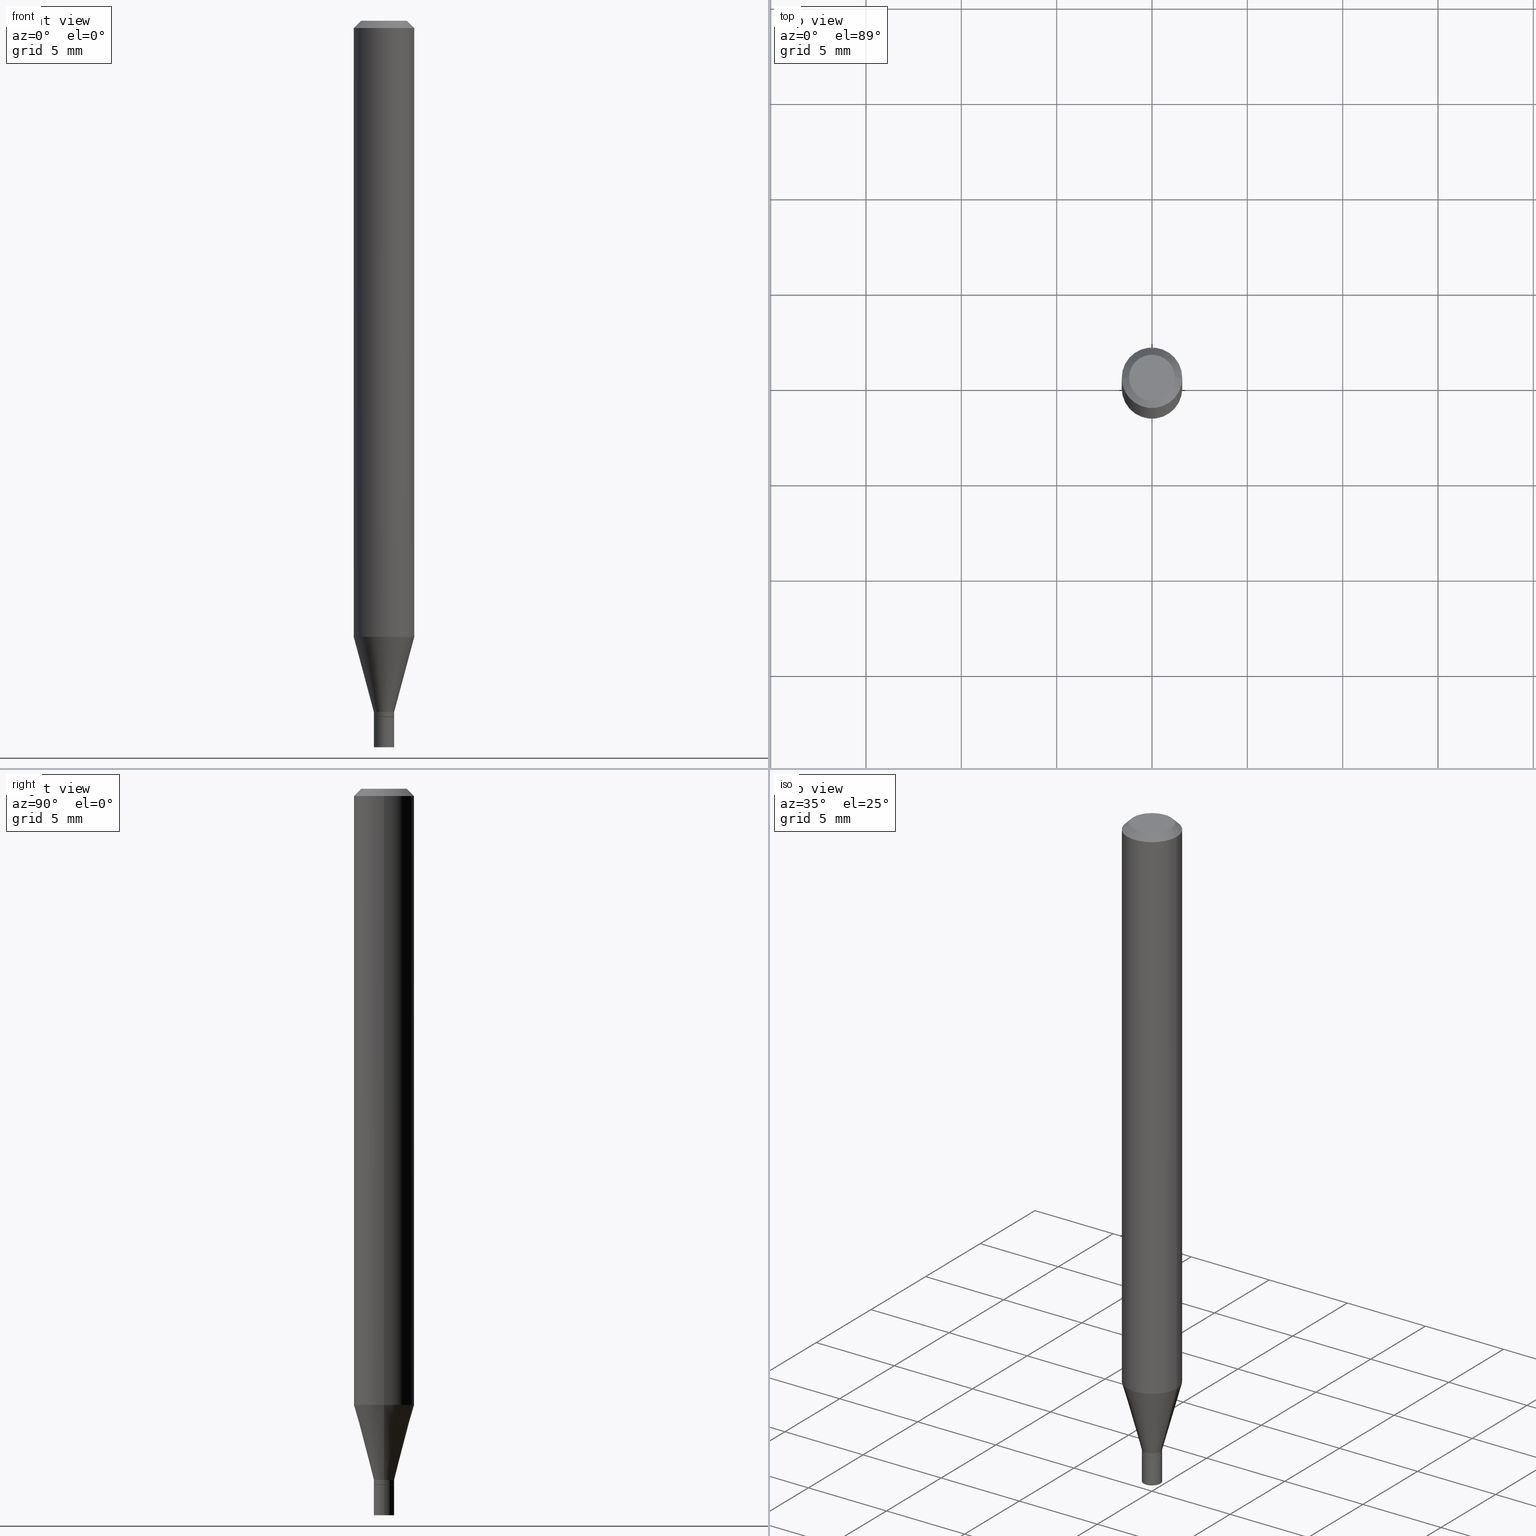
[diagram: canonical four-view strip — front | top / right | iso, engineering-drawing reading convention]
A machine part, canonical four-view strip (front | top / right | iso — engineering-drawing reading convention). The complete STEP part file that produces these views, byte-faithful:
ISO-10303-21;
HEADER;
FILE_DESCRIPTION (( 'STEP AP203' ),
    '1' );
FILE_NAME ('02369.STEP',
    '2024-03-18T20:16:10',
    ( '' ),
    ( '' ),
    'SwSTEP 2.0',
    'SolidWorks 2023',
    '' );
FILE_SCHEMA (( 'CONFIG_CONTROL_DESIGN' ));
ENDSEC;

DATA;
#1 = EDGE_CURVE ( 'NONE', #48, #379, #386, .T. ) ;
#2 = CARTESIAN_POINT ( 'NONE',  ( 3.110929512356370285E-29, -4.441582861894159323E-15, -1.272119891485891996 ) ) ;
#3 = CONICAL_SURFACE ( 'NONE', #146, 0.02050000000000000086, 0.7853981633974739252 ) ;
#4 = VECTOR ( 'NONE', #410, 39.37007874015748143 ) ;
#5 = DIRECTION ( 'NONE',  ( -1.000000000000000000, 6.982962677686266711E-15, 0.000000000000000000 ) ) ;
#6 = DIRECTION ( 'NONE',  ( 1.000000000000000000, -6.982962677686262766E-15, 0.000000000000000000 ) ) ;
#7 = DIRECTION ( 'NONE',  ( -2.445468806185136597E-29, 3.491481338843145583E-15, 1.000000000000000000 ) ) ;
#8 = EDGE_CURVE ( 'NONE', #56, #342, #374, .T. ) ;
#9 = APPROVAL_STATUS ( 'not_yet_approved' ) ;
#10 = DIRECTION ( 'NONE',  ( -2.445468806185136597E-29, 3.491481338843145583E-15, 1.000000000000000000 ) ) ;
#11 = ORIENTED_EDGE ( 'NONE', *, *, #62, .T. ) ;
#12 = FACE_OUTER_BOUND ( 'NONE', #460, .T. ) ;
#13 = CC_DESIGN_APPROVAL ( #274, ( #213 ) ) ;
#14 = ORIENTED_EDGE ( 'NONE', *, *, #8, .F. ) ;
#15 = CYLINDRICAL_SURFACE ( 'NONE', #162, 0.06250000000000000000 ) ;
#16 = ORIENTED_EDGE ( 'NONE', *, *, #402, .T. ) ;
#17 = DIRECTION ( 'NONE',  ( -2.445468806185136597E-29, 3.491481338843145583E-15, 1.000000000000000000 ) ) ;
#18 = ORIENTED_EDGE ( 'NONE', *, *, #132, .F. ) ;
#19 = VECTOR ( 'NONE', #326, 39.37007874015748854 ) ;
#20 = AXIS2_PLACEMENT_3D ( 'NONE', #373, #84, #220 ) ;
#21 = DIRECTION ( 'NONE',  ( 1.000000000000000000, -6.982962677686265922E-15, 0.000000000000000000 ) ) ;
#22 = EDGE_CURVE ( 'NONE', #296, #227, #312, .T. ) ;
#23 = EDGE_LOOP ( 'NONE', ( #167, #27 ) ) ;
#24 = EDGE_CURVE ( 'NONE', #446, #90, #184, .T. ) ;
#25 = DIRECTION ( 'NONE',  ( -2.445468806185136597E-29, 3.491481338843145583E-15, 1.000000000000000000 ) ) ;
#26 = DATE_AND_TIME ( #388, #231 ) ;
#27 = ORIENTED_EDGE ( 'NONE', *, *, #328, .T. ) ;
#28 = AXIS2_PLACEMENT_3D ( 'NONE', #339, #450, #445 ) ;
#29 = APPROVAL_DATE_TIME ( #26, #380 ) ;
#30 = ORIENTED_EDGE ( 'NONE', *, *, #24, .F. ) ;
#31 = CARTESIAN_POINT ( 'NONE',  ( 3.514138674488041056E-29, -5.017258683917600838E-15, -1.437000000000000055 ) ) ;
#32 = DATE_TIME_ROLE ( 'creation_date' ) ;
#33 = CARTESIAN_POINT ( 'NONE',  ( 0.02050000000000000086, -5.160409418810168864E-15, -1.437000000000000055 ) ) ;
#34 = AXIS2_PLACEMENT_3D ( 'NONE', #432, #7, #141 ) ;
#35 = LOCAL_TIME ( 16, 16, 10.00000000000000000, #127 ) ;
#36 = DIRECTION ( 'NONE',  ( 1.000000000000000000, -6.982962677686266711E-15, 4.876176775795936353E-29 ) ) ;
#37 = LINE ( 'NONE', #366, #397 ) ;
#38 = PERSON_AND_ORGANIZATION ( #321, #286 ) ;
#39 = EDGE_CURVE ( 'NONE', #56, #168, #160, .T. ) ;
#40 = CYLINDRICAL_SURFACE ( 'NONE', #34, 0.06250000000000000000 ) ;
#41 = DIRECTION ( 'NONE',  ( -1.000000000000000000, 6.982962677686265922E-15, -4.876176775795935793E-29 ) ) ;
#42 = DIRECTION ( 'NONE',  ( -1.000000000000000000, 6.982962677686265922E-15, -4.876176775795935793E-29 ) ) ;
#43 = LOCAL_TIME ( 16, 16, 10.00000000000000000, #429 ) ;
#44 = DIRECTION ( 'NONE',  ( 1.000000000000000000, -6.982962677686265922E-15, 0.000000000000000000 ) ) ;
#45 = PERSON_AND_ORGANIZATION ( #321, #286 ) ;
#46 = DIRECTION ( 'NONE',  ( -2.445468806185136597E-29, 3.491481338843145583E-15, 1.000000000000000000 ) ) ;
#47 = DIRECTION ( 'NONE',  ( -2.445468806185136877E-29, 3.491481338843145188E-15, 1.000000000000000000 ) ) ;
#48 = VERTEX_POINT ( 'NONE', #226 ) ;
#49 = VECTOR ( 'NONE', #249, 39.37007874015748143 ) ;
#50 = CARTESIAN_POINT ( 'NONE',  ( 3.668203209277704895E-29, -5.237222008264718177E-15, -1.500000000000000222 ) ) ;
#51 = CC_DESIGN_SECURITY_CLASSIFICATION ( #213, ( #428 ) ) ;
#52 = ORIENTED_EDGE ( 'NONE', *, *, #164, .T. ) ;
#53 = CC_DESIGN_PERSON_AND_ORGANIZATION_ASSIGNMENT ( #169, #173, ( #213 ) ) ;
#54 = CARTESIAN_POINT ( 'NONE',  ( -0.06250000000000000000, 4.440892098500626162E-16, -3.074334431409316114E-30 ) ) ;
#55 = VERTEX_POINT ( 'NONE', #272 ) ;
#56 = VERTEX_POINT ( 'NONE', #384 ) ;
#57 = DIRECTION ( 'NONE',  ( -2.445468806185136877E-29, 3.491481338843145188E-15, 1.000000000000000000 ) ) ;
#58 = EDGE_LOOP ( 'NONE', ( #304, #273, #11, #151 ) ) ;
#59 = APPROVAL_ROLE ( '' ) ;
#60 = EDGE_LOOP ( 'NONE', ( #221, #417, #310, #14 ) ) ;
#61 = PERSON_AND_ORGANIZATION ( #321, #286 ) ;
#62 = EDGE_CURVE ( 'NONE', #227, #296, #63, .T. ) ;
#63 = CIRCLE ( 'NONE', #406, 0.06250000000000000000 ) ;
#64 = CLOSED_SHELL ( 'NONE', ( #289, #219, #233, #338, #405, #301, #75, #89, #125, #411, #261, #452 ) ) ;
#65 = ORIENTED_EDGE ( 'NONE', *, *, #359, .F. ) ;
#66 = SHAPE_DEFINITION_REPRESENTATION ( #96, #148 ) ;
#67 = EDGE_CURVE ( 'NONE', #55, #56, #129, .T. ) ;
#68 = DIRECTION ( 'NONE',  ( 2.445468806185136597E-29, -3.491481338843145583E-15, -1.000000000000000000 ) ) ;
#69 = APPROVAL_DATE_TIME ( #199, #409 ) ;
#70 = LINE ( 'NONE', #170, #382 ) ;
#71 = AXIS2_PLACEMENT_3D ( 'NONE', #103, #465, #138 ) ;
#72 = CARTESIAN_POINT ( 'NONE',  ( 3.512915940084948815E-29, -5.015512943248179335E-15, -1.436500000000000110 ) ) ;
#73 = DIRECTION ( 'NONE',  ( 2.445468806185136597E-29, -3.491481338843145583E-15, -1.000000000000000000 ) ) ;
#74 = DIRECTION ( 'NONE',  ( -2.445468806185136597E-29, 3.491481338843145583E-15, 1.000000000000000000 ) ) ;
#75 = ADVANCED_FACE ( 'NONE', ( #95 ), #40, .T. ) ;
#76 =( CONVERSION_BASED_UNIT ( 'INCH', #280 ) LENGTH_UNIT ( ) NAMED_UNIT ( #98 ) );
#77 = DIRECTION ( 'NONE',  ( 1.000000000000000000, -6.982962677686265922E-15, 4.876176775795935793E-29 ) ) ;
#78 = AXIS2_PLACEMENT_3D ( 'NONE', #279, #236, #202 ) ;
#79 = APPLICATION_PROTOCOL_DEFINITION ( 'international standard', 'config_control_design', 1994, #260 ) ;
#80 = APPROVAL_PERSON_ORGANIZATION ( #45, #409, #248 ) ;
#81 = DIRECTION ( 'NONE',  ( 1.000000000000000000, -6.982962677686265922E-15, 0.000000000000000000 ) ) ;
#82 = LINE ( 'NONE', #119, #408 ) ;
#83 = ORIENTED_EDGE ( 'NONE', *, *, #210, .T. ) ;
#84 = DIRECTION ( 'NONE',  ( -2.445468806185136597E-29, 3.491481338843145583E-15, 1.000000000000000000 ) ) ;
#85 = ORIENTED_EDGE ( 'NONE', *, *, #164, .F. ) ;
#86 = VECTOR ( 'NONE', #306, 39.37007874015748854 ) ;
#87 = DIRECTION ( 'NONE',  ( 1.000000000000000000, -6.982962677686267499E-15, 4.884662768193073563E-29 ) ) ;
#88 = ORIENTED_EDGE ( 'NONE', *, *, #371, .F. ) ;
#89 = ADVANCED_FACE ( 'NONE', ( #207 ), #457, .T. ) ;
#90 = VERTEX_POINT ( 'NONE', #281 ) ;
#91 = CC_DESIGN_DATE_AND_TIME_ASSIGNMENT ( #317, #385, ( #213 ) ) ;
#92 = AXIS2_PLACEMENT_3D ( 'NONE', #354, #211, #42 ) ;
#93 = AXIS2_PLACEMENT_3D ( 'NONE', #2, #290, #6 ) ;
#94 = EDGE_LOOP ( 'NONE', ( #376, #123, #218, #18 ) ) ;
#95 = FACE_OUTER_BOUND ( 'NONE', #197, .T. ) ;
#96 = PRODUCT_DEFINITION_SHAPE ( 'NONE', 'NONE',  #387 ) ;
#97 = PERSON_AND_ORGANIZATION ( #321, #286 ) ;
#98 = DIMENSIONAL_EXPONENTS ( 1.000000000000000000, 0.000000000000000000, 0.000000000000000000, 0.000000000000000000, 0.000000000000000000, 0.000000000000000000, 0.000000000000000000 ) ;
#99 = AXIS2_PLACEMENT_3D ( 'NONE', #287, #396, #362 ) ;
#100 = ORIENTED_EDGE ( 'NONE', *, *, #154, .T. ) ;
#101 = ORIENTED_EDGE ( 'NONE', *, *, #39, .F. ) ;
#102 = DIRECTION ( 'NONE',  ( -2.445468806185136597E-29, 3.491481338843145583E-15, 1.000000000000000000 ) ) ;
#103 = CARTESIAN_POINT ( 'NONE',  ( 0.000000000000000000, 0.000000000000000000, 0.000000000000000000 ) ) ;
#104 = CARTESIAN_POINT ( 'NONE',  ( 3.668203209277705088E-31, -5.237222008264718399E-17, -0.01499999999999999944 ) ) ;
#105 = ADVANCED_FACE ( 'NONE', ( #284 ), #363, .F. ) ;
#106 = AXIS2_PLACEMENT_3D ( 'NONE', #440, #403, #291 ) ;
#107 = MECHANICAL_CONTEXT ( 'NONE', #424, 'mechanical' ) ;
#108 = DIRECTION ( 'NONE',  ( 1.000000000000000000, -6.982962677686284854E-15, 0.000000000000000000 ) ) ;
#109 = APPROVAL_ROLE ( '' ) ;
#110 = DIRECTION ( 'NONE',  ( -2.445468806185136597E-29, 3.491481338843145583E-15, 1.000000000000000000 ) ) ;
#111 = DIRECTION ( 'NONE',  ( -1.000000000000000000, 6.982962677686266711E-15, 0.000000000000000000 ) ) ;
#112 = CARTESIAN_POINT ( 'NONE',  ( 0.000000000000000000, 0.000000000000000000, 0.000000000000000000 ) ) ;
#113 = AXIS2_PLACEMENT_3D ( 'NONE', #31, #267, #191 ) ;
#114 =( LENGTH_UNIT ( ) NAMED_UNIT ( * ) SI_UNIT ( $, .METRE. ) );
#115 = LOCAL_TIME ( 16, 16, 10.00000000000000000, #194 ) ;
#116 = DIRECTION ( 'NONE',  ( 0.7071067811865506814, -7.319954787623267089E-15, -0.7071067811865443531 ) ) ;
#117 = ORIENTED_EDGE ( 'NONE', *, *, #1, .T. ) ;
#118 = CYLINDRICAL_SURFACE ( 'NONE', #28, 0.02099999999999992498 ) ;
#119 = CARTESIAN_POINT ( 'NONE',  ( 0.06250000000000000000, -4.811533449433679005E-16, -0.01499999999999999944 ) ) ;
#120 = ORIENTED_EDGE ( 'NONE', *, *, #157, .F. ) ;
#121 = CONICAL_SURFACE ( 'NONE', #349, 0.06250000000000000000, 0.7853981633974528309 ) ;
#122 = DIRECTION ( 'NONE',  ( 1.000000000000000000, -6.982962677686265922E-15, 0.000000000000000000 ) ) ;
#123 = ORIENTED_EDGE ( 'NONE', *, *, #375, .T. ) ;
#124 = VERTEX_POINT ( 'NONE', #438 ) ;
#125 = ADVANCED_FACE ( 'NONE', ( #200 ), #395, .F. ) ;
#126 = VERTEX_POINT ( 'NONE', #331 ) ;
#127 = COORDINATED_UNIVERSAL_TIME_OFFSET ( 5, 0, .BEHIND. ) ;
#128 = VECTOR ( 'NONE', #47, 39.37007874015748143 ) ;
#129 = LINE ( 'NONE', #271, #420 ) ;
#130 = ORIENTED_EDGE ( 'NONE', *, *, #412, .F. ) ;
#131 = ORIENTED_EDGE ( 'NONE', *, *, #8, .T. ) ;
#132 = EDGE_CURVE ( 'NONE', #446, #351, #142, .T. ) ;
#133 = CIRCLE ( 'NONE', #293, 0.02100000000000000477 ) ;
#134 = CARTESIAN_POINT ( 'NONE',  ( 3.489683986426190072E-29, -4.982343870529169189E-15, -1.427000000000000046 ) ) ;
#135 = EDGE_CURVE ( 'NONE', #124, #227, #70, .T. ) ;
#136 = DIRECTION ( 'NONE',  ( -2.445468806185136597E-29, 3.491481338843145583E-15, 1.000000000000000000 ) ) ;
#137 = APPROVAL_STATUS ( 'not_yet_approved' ) ;
#138 = DIRECTION ( 'NONE',  ( 1.000000000000000000, 0.000000000000000000, 0.000000000000000000 ) ) ;
#139 = DIRECTION ( 'NONE',  ( 1.000000000000000000, -6.982962677686265922E-15, 4.876176775795935232E-29 ) ) ;
#140 = EDGE_CURVE ( 'NONE', #342, #124, #314, .T. ) ;
#141 = DIRECTION ( 'NONE',  ( 1.000000000000000000, -6.982962677686266711E-15, 4.876176775795935793E-29 ) ) ;
#142 = LINE ( 'NONE', #33, #269 ) ;
#143 = CARTESIAN_POINT ( 'NONE',  ( 3.489683986426190072E-29, -4.982343870529169189E-15, -1.427000000000000046 ) ) ;
#144 = CARTESIAN_POINT ( 'NONE',  ( 3.512915940084948815E-29, -5.015512943248179335E-15, -1.436500000000000110 ) ) ;
#145 = ORIENTED_EDGE ( 'NONE', *, *, #140, .F. ) ;
#146 = AXIS2_PLACEMENT_3D ( 'NONE', #319, #234, #400 ) ;
#147 = FACE_OUTER_BOUND ( 'NONE', #448, .T. ) ;
#148 = ADVANCED_BREP_SHAPE_REPRESENTATION ( '02369', ( #158, #318, #71 ), #421 ) ;
#149 = ORIENTED_EDGE ( 'NONE', *, *, #132, .T. ) ;
#150 = CARTESIAN_POINT ( 'NONE',  ( 0.02099999999999992498, -5.128986086760580222E-15, -1.427000000000000046 ) ) ;
#151 = ORIENTED_EDGE ( 'NONE', *, *, #216, .F. ) ;
#152 = CALENDAR_DATE ( 2024, 18, 3 ) ;
#153 = DIRECTION ( 'NONE',  ( -2.445468806185136597E-29, 3.491481338843145583E-15, 1.000000000000000000 ) ) ;
#154 = EDGE_CURVE ( 'NONE', #342, #56, #285, .T. ) ;
#155 = ORIENTED_EDGE ( 'NONE', *, *, #431, .F. ) ;
#156 = AXIS2_PLACEMENT_3D ( 'NONE', #72, #175, #282 ) ;
#157 = EDGE_CURVE ( 'NONE', #90, #446, #275, .T. ) ;
#158 = MANIFOLD_SOLID_BREP ( 'Body-Move/Copy2[1]', #189 ) ;
#159 = ORIENTED_EDGE ( 'NONE', *, *, #135, .F. ) ;
#160 = LINE ( 'NONE', #347, #86 ) ;
#161 = DIRECTION ( 'NONE',  ( 1.000000000000000000, -6.982962677686266711E-15, 0.000000000000000000 ) ) ;
#162 = AXIS2_PLACEMENT_3D ( 'NONE', #112, #46, #182 ) ;
#163 = DIRECTION ( 'NONE',  ( -2.445468806185136597E-29, 3.491481338843145583E-15, 1.000000000000000000 ) ) ;
#164 = EDGE_CURVE ( 'NONE', #350, #379, #133, .T. ) ;
#165 = PRODUCT ( '02369', '02369', '', ( #107 ) ) ;
#166 = PERSON_AND_ORGANIZATION ( #321, #286 ) ;
#167 = ORIENTED_EDGE ( 'NONE', *, *, #412, .T. ) ;
#168 = VERTEX_POINT ( 'NONE', #433 ) ;
#169 = PERSON_AND_ORGANIZATION ( #321, #286 ) ;
#170 = CARTESIAN_POINT ( 'NONE',  ( 0.06250000000000000000, -4.364351673553916694E-16, 3.047610484872459871E-30 ) ) ;
#171 = AXIS2_PLACEMENT_3D ( 'NONE', #134, #102, #44 ) ;
#172 =( NAMED_UNIT ( * ) SI_UNIT ( $, .STERADIAN. ) SOLID_ANGLE_UNIT ( ) );
#173 = PERSON_AND_ORGANIZATION_ROLE ( 'classification_officer' ) ;
#174 = DIRECTION ( 'NONE',  ( -0.7071067811865506814, 2.468850131082289798E-15, -0.7071067811865443531 ) ) ;
#175 = DIRECTION ( 'NONE',  ( -2.445468806185136597E-29, 3.491481338843145583E-15, 1.000000000000000000 ) ) ;
#176 = DIRECTION ( 'NONE',  ( -2.445468806185136597E-29, 3.491481338843145583E-15, 1.000000000000000000 ) ) ;
#177 = CYLINDRICAL_SURFACE ( 'NONE', #367, 0.02099999999999992498 ) ;
#178 = DIRECTION ( 'NONE',  ( -2.438088387897960049E-29, 3.491481338843145188E-15, 1.000000000000000000 ) ) ;
#179 = CIRCLE ( 'NONE', #415, 0.02100000000000000477 ) ;
#180 = CARTESIAN_POINT ( 'NONE',  ( 3.514138674488041056E-29, -5.017258683917600838E-15, -1.437000000000000055 ) ) ;
#181 =( NAMED_UNIT ( * ) PLANE_ANGLE_UNIT ( ) SI_UNIT ( $, .RADIAN. ) );
#182 = DIRECTION ( 'NONE',  ( 1.000000000000000000, -6.982962677686266711E-15, 4.876176775795935793E-29 ) ) ;
#183 = LINE ( 'NONE', #187, #4 ) ;
#184 = CIRCLE ( 'NONE', #113, 0.02050000000000000086 ) ;
#185 = FACE_OUTER_BOUND ( 'NONE', #193, .T. ) ;
#186 = ORIENTED_EDGE ( 'NONE', *, *, #431, .T. ) ;
#187 = CARTESIAN_POINT ( 'NONE',  ( -0.02050000000000000086, -4.871597423086780565E-15, -1.437000000000000055 ) ) ;
#188 = ORIENTED_EDGE ( 'NONE', *, *, #22, .T. ) ;
#189 = CLOSED_SHELL ( 'NONE', ( #254, #105, #329, #393 ) ) ;
#190 = CIRCLE ( 'NONE', #309, 0.06250000000000000000 ) ;
#191 = DIRECTION ( 'NONE',  ( 1.000000000000000000, -6.982962677686261977E-15, 0.000000000000000000 ) ) ;
#192 = ORIENTED_EDGE ( 'NONE', *, *, #39, .T. ) ;
#193 = EDGE_LOOP ( 'NONE', ( #264, #453, #449, #311 ) ) ;
#194 = COORDINATED_UNIVERSAL_TIME_OFFSET ( 5, 0, .BEHIND. ) ;
#195 = AXIS2_PLACEMENT_3D ( 'NONE', #252, #10, #122 ) ;
#196 = CALENDAR_DATE ( 2024, 18, 3 ) ;
#197 = EDGE_LOOP ( 'NONE', ( #88, #186, #268, #334 ) ) ;
#198 = CARTESIAN_POINT ( 'NONE',  ( 0.02100000000000000477, -1.466422162314116246E-16, 1.023997122917146650E-30 ) ) ;
#199 = DATE_AND_TIME ( #152, #205 ) ;
#200 = FACE_OUTER_BOUND ( 'NONE', #23, .T. ) ;
#201 = DIRECTION ( 'NONE',  ( 1.000000000000000000, -6.982962677686265922E-15, 0.000000000000000000 ) ) ;
#202 = DIRECTION ( 'NONE',  ( 1.000000000000000000, -6.982962677686261977E-15, 0.000000000000000000 ) ) ;
#203 = AXIS2_PLACEMENT_3D ( 'NONE', #352, #163, #456 ) ;
#204 = DATE_AND_TIME ( #232, #115 ) ;
#205 = LOCAL_TIME ( 16, 16, 10.00000000000000000, #251 ) ;
#206 = DIRECTION ( 'NONE',  ( 1.000000000000000000, -6.982962677686284854E-15, 0.000000000000000000 ) ) ;
#207 = FACE_OUTER_BOUND ( 'NONE', #278, .T. ) ;
#208 = CC_DESIGN_PERSON_AND_ORGANIZATION_ASSIGNMENT ( #404, #463, ( #165 ) ) ;
#209 = FACE_OUTER_BOUND ( 'NONE', #250, .T. ) ;
#210 = EDGE_CURVE ( 'NONE', #379, #350, #461, .T. ) ;
#211 = DIRECTION ( 'NONE',  ( 2.438088387897960049E-29, -3.491481338843145188E-15, -1.000000000000000000 ) ) ;
#212 = AXIS2_PLACEMENT_3D ( 'NONE', #392, #178, #77 ) ;
#213 = SECURITY_CLASSIFICATION ( '', '', #425 ) ;
#214 = CARTESIAN_POINT ( 'NONE',  ( 0.02050000000000000086, -5.160409418810168864E-15, -1.437000000000000055 ) ) ;
#215 = CARTESIAN_POINT ( 'NONE',  ( 2.954749863753850810E-45, -4.218599715585527355E-31, -1.208254980100596185E-16 ) ) ;
#216 = EDGE_CURVE ( 'NONE', #459, #296, #37, .T. ) ;
#217 = LINE ( 'NONE', #370, #383 ) ;
#218 = ORIENTED_EDGE ( 'NONE', *, *, #401, .F. ) ;
#219 = ADVANCED_FACE ( 'NONE', ( #241 ), #3, .T. ) ;
#220 = DIRECTION ( 'NONE',  ( 1.000000000000000000, -6.982962677686265922E-15, 4.876176775795935232E-29 ) ) ;
#221 = ORIENTED_EDGE ( 'NONE', *, *, #67, .F. ) ;
#222 = DESIGN_CONTEXT ( 'detailed design', #260, 'design' ) ;
#223 = CARTESIAN_POINT ( 'NONE',  ( -0.06250000000000000000, -1.802888331138340782E-15, -0.01499999999999999944 ) ) ;
#224 = ORIENTED_EDGE ( 'NONE', *, *, #375, .F. ) ;
#225 = CONICAL_SURFACE ( 'NONE', #313, 0.02099999999999992498, 0.2617993877991504625 ) ;
#226 = CARTESIAN_POINT ( 'NONE',  ( 0.02100000000000000477, -5.383864224496130787E-15, -1.500000000000000222 ) ) ;
#227 = VERTEX_POINT ( 'NONE', #464 ) ;
#228 = PERSON_AND_ORGANIZATION_ROLE ( 'design_supplier' ) ;
#229 = CARTESIAN_POINT ( 'NONE',  ( 3.489683986426190072E-29, -4.982343870529169189E-15, -1.427000000000000046 ) ) ;
#230 = VECTOR ( 'NONE', #57, 39.37007874015748143 ) ;
#231 = LOCAL_TIME ( 16, 16, 10.00000000000000000, #266 ) ;
#232 = CALENDAR_DATE ( 2024, 18, 3 ) ;
#233 = ADVANCED_FACE ( 'NONE', ( #239 ), #121, .T. ) ;
#234 = DIRECTION ( 'NONE',  ( -2.445468806185136597E-29, 3.491481338843145583E-15, 1.000000000000000000 ) ) ;
#235 = PERSON_AND_ORGANIZATION ( #321, #286 ) ;
#236 = DIRECTION ( 'NONE',  ( -2.445468806185136597E-29, 3.491481338843145583E-15, 1.000000000000000000 ) ) ;
#237 = CARTESIAN_POINT ( 'NONE',  ( 1.466422162314467535E-16, 0.02099999999999498795, -1.437000000000000055 ) ) ;
#238 = CC_DESIGN_PERSON_AND_ORGANIZATION_ASSIGNMENT ( #166, #277, ( #428 ) ) ;
#239 = FACE_OUTER_BOUND ( 'NONE', #58, .T. ) ;
#240 = AXIS2_PLACEMENT_3D ( 'NONE', #330, #320, #206 ) ;
#241 = FACE_OUTER_BOUND ( 'NONE', #94, .T. ) ;
#242 = PLANE ( 'NONE',  #303 ) ;
#243 = FACE_OUTER_BOUND ( 'NONE', #372, .T. ) ;
#244 = UNCERTAINTY_MEASURE_WITH_UNIT (LENGTH_MEASURE( 1.000000000000000082E-05 ), #76, 'distance_accuracy_value', 'NONE');
#245 = CARTESIAN_POINT ( 'NONE',  ( 3.110929512356370285E-29, -4.441582861894159323E-15, -1.272119891485891996 ) ) ;
#246 = AXIS2_PLACEMENT_3D ( 'NONE', #180, #136, #108 ) ;
#247 = CC_DESIGN_APPROVAL ( #409, ( #387 ) ) ;
#248 = APPROVAL_ROLE ( '' ) ;
#249 = DIRECTION ( 'NONE',  ( -2.445468806185136877E-29, 3.491481338843145188E-15, 1.000000000000000000 ) ) ;
#250 = EDGE_LOOP ( 'NONE', ( #224, #419, #149, #257 ) ) ;
#251 = COORDINATED_UNIVERSAL_TIME_OFFSET ( 5, 0, .BEHIND. ) ;
#252 = CARTESIAN_POINT ( 'NONE',  ( 3.489683986426190072E-29, -4.982343870529169189E-15, -1.427000000000000046 ) ) ;
#253 = EDGE_LOOP ( 'NONE', ( #345, #299, #381, #159 ) ) ;
#254 = ADVANCED_FACE ( 'NONE', ( #243 ), #323, .T. ) ;
#255 = LINE ( 'NONE', #54, #128 ) ;
#256 = AXIS2_PLACEMENT_3D ( 'NONE', #144, #413, #81 ) ;
#257 = ORIENTED_EDGE ( 'NONE', *, *, #322, .F. ) ;
#258 = ORIENTED_EDGE ( 'NONE', *, *, #1, .F. ) ;
#259 = CIRCLE ( 'NONE', #256, 0.02099999999999992498 ) ;
#260 = APPLICATION_CONTEXT ( 'configuration controlled 3d designs of mechanical parts and assemblies' ) ;
#261 = ADVANCED_FACE ( 'NONE', ( #209 ), #308, .T. ) ;
#262 = APPROVAL_PERSON_ORGANIZATION ( #38, #380, #109 ) ;
#263 = DIRECTION ( 'NONE',  ( -2.445468806185136597E-29, 3.491481338843145583E-15, 1.000000000000000000 ) ) ;
#264 = ORIENTED_EDGE ( 'NONE', *, *, #401, .T. ) ;
#265 = ORIENTED_EDGE ( 'NONE', *, *, #305, .F. ) ;
#266 = COORDINATED_UNIVERSAL_TIME_OFFSET ( 5, 0, .BEHIND. ) ;
#267 = DIRECTION ( 'NONE',  ( -2.445468806185136597E-29, 3.491481338843145583E-15, 1.000000000000000000 ) ) ;
#268 = ORIENTED_EDGE ( 'NONE', *, *, #135, .T. ) ;
#269 = VECTOR ( 'NONE', #288, 39.37007874015748143 ) ;
#270 = EDGE_CURVE ( 'NONE', #351, #342, #407, .T. ) ;
#271 = CARTESIAN_POINT ( 'NONE',  ( -0.02099999999999992498, 1.492139745096205060E-16, -1.032976368953526656E-30 ) ) ;
#272 = CARTESIAN_POINT ( 'NONE',  ( -0.02099999999999992498, -4.866298968738558952E-15, -1.436500000000000110 ) ) ;
#273 = ORIENTED_EDGE ( 'NONE', *, *, #359, .T. ) ;
#274 = APPROVAL ( #458, 'UNSPECIFIED' ) ;
#275 = CIRCLE ( 'NONE', #78, 0.02050000000000000086 ) ;
#276 = APPROVAL_PERSON_ORGANIZATION ( #61, #274, #59 ) ;
#277 = PERSON_AND_ORGANIZATION_ROLE ( 'creator' ) ;
#278 = EDGE_LOOP ( 'NONE', ( #65, #130, #283, #188 ) ) ;
#279 = CARTESIAN_POINT ( 'NONE',  ( 3.514138674488041056E-29, -5.017258683917600838E-15, -1.437000000000000055 ) ) ;
#280 = LENGTH_MEASURE_WITH_UNIT ( LENGTH_MEASURE( 0.02539999999999999897 ), #114 );
#281 = CARTESIAN_POINT ( 'NONE',  ( -0.02050000000000000086, -4.868948195912669364E-15, -1.437000000000000055 ) ) ;
#282 = DIRECTION ( 'NONE',  ( 1.000000000000000000, -6.982962677686265922E-15, 0.000000000000000000 ) ) ;
#283 = ORIENTED_EDGE ( 'NONE', *, *, #216, .T. ) ;
#284 = FACE_OUTER_BOUND ( 'NONE', #341, .T. ) ;
#285 = CIRCLE ( 'NONE', #171, 0.02099999999999992498 ) ;
#286 = ORGANIZATION ( 'UNSPECIFIED', 'UNSPECIFIED', '' ) ;
#287 = CARTESIAN_POINT ( 'NONE',  ( 2.954749863753850810E-45, -4.218599715585527355E-31, -1.208254980100596185E-16 ) ) ;
#288 = DIRECTION ( 'NONE',  ( 0.7071067811865656694, -2.468850131082446387E-15, 0.7071067811865294761 ) ) ;
#289 = ADVANCED_FACE ( 'NONE', ( #185 ), #118, .T. ) ;
#290 = DIRECTION ( 'NONE',  ( -2.445468806185136597E-29, 3.491481338843145583E-15, 1.000000000000000000 ) ) ;
#291 = DIRECTION ( 'NONE',  ( 1.000000000000000000, -6.982962677686261977E-15, 0.000000000000000000 ) ) ;
#292 = CARTESIAN_POINT ( 'NONE',  ( 0.02099999999999992498, -5.162155159479590368E-15, -1.436500000000000110 ) ) ;
#293 = AXIS2_PLACEMENT_3D ( 'NONE', #358, #176, #441 ) ;
#294 = ORIENTED_EDGE ( 'NONE', *, *, #378, .F. ) ;
#295 = CARTESIAN_POINT ( 'NONE',  ( 0.04749999999999998668, -4.035134999187580102E-16, -1.208254980100570300E-16 ) ) ;
#296 = VERTEX_POINT ( 'NONE', #223 ) ;
#297 = PRODUCT_RELATED_PRODUCT_CATEGORY ( 'detail', '', ( #165 ) ) ;
#298 = CARTESIAN_POINT ( 'NONE',  ( -0.02100000000000000477, -4.978026371581538336E-15, -1.437000000000000055 ) ) ;
#299 = ORIENTED_EDGE ( 'NONE', *, *, #371, .T. ) ;
#300 = CARTESIAN_POINT ( 'NONE',  ( 0.02100000000000000477, -5.163900900149012660E-15, -1.437000000000000055 ) ) ;
#301 = ADVANCED_FACE ( 'NONE', ( #12 ), #436, .T. ) ;
#302 = ORIENTED_EDGE ( 'NONE', *, *, #378, .T. ) ;
#303 = AXIS2_PLACEMENT_3D ( 'NONE', #324, #364, #442 ) ;
#304 = ORIENTED_EDGE ( 'NONE', *, *, #328, .F. ) ;
#305 = EDGE_CURVE ( 'NONE', #126, #48, #179, .T. ) ;
#306 = DIRECTION ( 'NONE',  ( -0.2588190451025217387, 5.211531920934551042E-15, 0.9659258262890679791 ) ) ;
#307 = DIRECTION ( 'NONE',  ( -2.445468806185136597E-29, 3.491481338843145583E-15, 1.000000000000000000 ) ) ;
#308 = CONICAL_SURFACE ( 'NONE', #106, 0.02050000000000000086, 0.7853981633974739252 ) ;
#309 = AXIS2_PLACEMENT_3D ( 'NONE', #245, #153, #377 ) ;
#310 = ORIENTED_EDGE ( 'NONE', *, *, #270, .T. ) ;
#311 = ORIENTED_EDGE ( 'NONE', *, *, #270, .F. ) ;
#312 = CIRCLE ( 'NONE', #203, 0.06250000000000000000 ) ;
#313 = AXIS2_PLACEMENT_3D ( 'NONE', #143, #110, #201 ) ;
#314 = LINE ( 'NONE', #462, #19 ) ;
#315 = CC_DESIGN_PERSON_AND_ORGANIZATION_ASSIGNMENT ( #235, #228, ( #428 ) ) ;
#316 = DIRECTION ( 'NONE',  ( -2.445468806185136597E-29, 3.491481338843145583E-15, 1.000000000000000000 ) ) ;
#317 = DATE_AND_TIME ( #346, #43 ) ;
#318 = MANIFOLD_SOLID_BREP ( 'Body-Move/Copy2[2]', #64 ) ;
#319 = CARTESIAN_POINT ( 'NONE',  ( 3.514138674488041056E-29, -5.017258683917600838E-15, -1.437000000000000055 ) ) ;
#320 = DIRECTION ( 'NONE',  ( -2.445468806185136597E-29, 3.491481338843145583E-15, 1.000000000000000000 ) ) ;
#321 = PERSON ( 'UNSPECIFIED', 'UNSPECIFIED', 'UNSPECIFIED', ('UNSPECIFIED'), ('UNSPECIFIED'), ('UNSPECIFIED') ) ;
#322 = EDGE_CURVE ( 'NONE', #55, #351, #259, .T. ) ;
#323 = CYLINDRICAL_SURFACE ( 'NONE', #356, 0.02100000000000000477 ) ;
#324 = CARTESIAN_POINT ( 'NONE',  ( 3.514138674488041056E-29, -5.017258683917600838E-15, -1.437000000000000055 ) ) ;
#325 = AXIS2_PLACEMENT_3D ( 'NONE', #104, #68, #111 ) ;
#326 = DIRECTION ( 'NONE',  ( 0.2588190451025217387, 1.565188264969619207E-15, 0.9659258262890679791 ) ) ;
#327 = CC_DESIGN_APPROVAL ( #380, ( #428 ) ) ;
#328 = EDGE_CURVE ( 'NONE', #348, #459, #389, .T. ) ;
#329 = ADVANCED_FACE ( 'NONE', ( #414 ), #443, .T. ) ;
#330 = CARTESIAN_POINT ( 'NONE',  ( 3.668203209277704895E-29, -5.237222008264718177E-15, -1.500000000000000222 ) ) ;
#331 = CARTESIAN_POINT ( 'NONE',  ( -0.02100000000000000477, -4.978026371581538336E-15, -1.500000000000000222 ) ) ;
#332 = DIRECTION ( 'NONE',  ( 2.438088387897960049E-29, -3.491481338843145188E-15, -1.000000000000000000 ) ) ;
#333 = CARTESIAN_POINT ( 'NONE',  ( 0.02099999999999992498, -1.466422162314110822E-16, 1.023997122917142971E-30 ) ) ;
#334 = ORIENTED_EDGE ( 'NONE', *, *, #22, .F. ) ;
#335 = DIRECTION ( 'NONE',  ( -2.445468806185136877E-29, 3.491481338843145188E-15, 1.000000000000000000 ) ) ;
#336 = AXIS2_PLACEMENT_3D ( 'NONE', #215, #17, #87 ) ;
#337 = EDGE_LOOP ( 'NONE', ( #30, #120 ) ) ;
#338 = ADVANCED_FACE ( 'NONE', ( #447 ), #15, .T. ) ;
#339 = CARTESIAN_POINT ( 'NONE',  ( 0.000000000000000000, 0.000000000000000000, 0.000000000000000000 ) ) ;
#340 = PLANE ( 'NONE',  #357 ) ;
#341 = EDGE_LOOP ( 'NONE', ( #418, #265 ) ) ;
#342 = VERTEX_POINT ( 'NONE', #150 ) ;
#343 = CIRCLE ( 'NONE', #99, 0.04749999999999998668 ) ;
#344 = CARTESIAN_POINT ( 'NONE',  ( 3.668203209277705088E-31, -5.237222008264718399E-17, -0.01499999999999999944 ) ) ;
#345 = ORIENTED_EDGE ( 'NONE', *, *, #365, .T. ) ;
#346 = CALENDAR_DATE ( 2024, 18, 3 ) ;
#347 = CARTESIAN_POINT ( 'NONE',  ( -0.02099999999999992498, -4.833129896019548018E-15, -1.427000000000000046 ) ) ;
#348 = VERTEX_POINT ( 'NONE', #295 ) ;
#349 = AXIS2_PLACEMENT_3D ( 'NONE', #398, #73, #5 ) ;
#350 = VERTEX_POINT ( 'NONE', #298 ) ;
#351 = VERTEX_POINT ( 'NONE', #292 ) ;
#352 = CARTESIAN_POINT ( 'NONE',  ( 3.668203209277705088E-31, -5.237222008264718399E-17, -0.01499999999999999944 ) ) ;
#353 = EDGE_LOOP ( 'NONE', ( #294, #454, #117, #85 ) ) ;
#354 = CARTESIAN_POINT ( 'NONE',  ( 3.316907271900975110E-16, 0.04749999999999998668, -2.262581126000791810E-16 ) ) ;
#355 = FACE_OUTER_BOUND ( 'NONE', #60, .T. ) ;
#356 = AXIS2_PLACEMENT_3D ( 'NONE', #466, #74, #139 ) ;
#357 = AXIS2_PLACEMENT_3D ( 'NONE', #237, #332, #41 ) ;
#358 = CARTESIAN_POINT ( 'NONE',  ( 3.514138674488041056E-29, -5.017258683917600838E-15, -1.437000000000000055 ) ) ;
#359 = EDGE_CURVE ( 'NONE', #348, #227, #82, .T. ) ;
#360 = CARTESIAN_POINT ( 'NONE',  ( 0.000000000000000000, 0.000000000000000000, 0.000000000000000000 ) ) ;
#361 = DIRECTION ( 'NONE',  ( -2.445468806185136877E-29, 3.491481338843145188E-15, 1.000000000000000000 ) ) ;
#362 = DIRECTION ( 'NONE',  ( 1.000000000000000000, -6.982962677686267499E-15, 4.884662768193073563E-29 ) ) ;
#363 = PLANE ( 'NONE',  #212 ) ;
#364 = DIRECTION ( 'NONE',  ( -2.438088387897960049E-29, 3.491481338843145188E-15, 1.000000000000000000 ) ) ;
#365 = EDGE_CURVE ( 'NONE', #124, #168, #190, .T. ) ;
#366 = CARTESIAN_POINT ( 'NONE',  ( -0.06250000000000000000, 3.840629472727444916E-16, -0.01499999999999999944 ) ) ;
#367 = AXIS2_PLACEMENT_3D ( 'NONE', #360, #316, #36 ) ;
#368 = APPLICATION_PROTOCOL_DEFINITION ( 'international standard', 'config_control_design', 1994, #424 ) ;
#369 = DIRECTION ( 'NONE',  ( 1.000000000000000000, -6.982962677686284854E-15, 0.000000000000000000 ) ) ;
#370 = CARTESIAN_POINT ( 'NONE',  ( -0.02100000000000000477, 1.492139745096210730E-16, -1.032976368953530510E-30 ) ) ;
#371 = EDGE_CURVE ( 'NONE', #168, #296, #255, .T. ) ;
#372 = EDGE_LOOP ( 'NONE', ( #16, #302, #426, #258 ) ) ;
#373 = CARTESIAN_POINT ( 'NONE',  ( 0.000000000000000000, 0.000000000000000000, 0.000000000000000000 ) ) ;
#374 = CIRCLE ( 'NONE', #451, 0.02099999999999992498 ) ;
#375 = EDGE_CURVE ( 'NONE', #90, #55, #183, .T. ) ;
#376 = ORIENTED_EDGE ( 'NONE', *, *, #24, .T. ) ;
#377 = DIRECTION ( 'NONE',  ( 1.000000000000000000, -6.982962677686262766E-15, 0.000000000000000000 ) ) ;
#378 = EDGE_CURVE ( 'NONE', #126, #350, #217, .T. ) ;
#379 = VERTEX_POINT ( 'NONE', #300 ) ;
#380 = APPROVAL ( #137, 'UNSPECIFIED' ) ;
#381 = ORIENTED_EDGE ( 'NONE', *, *, #62, .F. ) ;
#382 = VECTOR ( 'NONE', #361, 39.37007874015748143 ) ;
#383 = VECTOR ( 'NONE', #335, 39.37007874015748143 ) ;
#384 = CARTESIAN_POINT ( 'NONE',  ( -0.02099999999999992498, -4.415311774031822362E-15, -1.427000000000000046 ) ) ;
#385 = DATE_TIME_ROLE ( 'classification_date' ) ;
#386 = LINE ( 'NONE', #198, #230 ) ;
#387 = PRODUCT_DEFINITION ( 'UNKNOWN', '', #428, #222 ) ;
#388 = CALENDAR_DATE ( 2024, 18, 3 ) ;
#389 = CIRCLE ( 'NONE', #336, 0.04749999999999998668 ) ;
#390 = CIRCLE ( 'NONE', #156, 0.02099999999999992498 ) ;
#391 = APPROVAL_DATE_TIME ( #394, #274 ) ;
#392 = CARTESIAN_POINT ( 'NONE',  ( 3.576687321579069994E-29, -5.368277968210015545E-15, -1.500000000000000222 ) ) ;
#393 = ADVANCED_FACE ( 'NONE', ( #147 ), #340, .F. ) ;
#394 = DATE_AND_TIME ( #196, #35 ) ;
#395 = PLANE ( 'NONE',  #92 ) ;
#396 = DIRECTION ( 'NONE',  ( -2.445468806185136597E-29, 3.491481338843145583E-15, 1.000000000000000000 ) ) ;
#397 = VECTOR ( 'NONE', #174, 39.37007874015748143 ) ;
#398 = CARTESIAN_POINT ( 'NONE',  ( 3.668203209277705088E-31, -5.237222008264718399E-17, -0.01499999999999999944 ) ) ;
#399 = FACE_OUTER_BOUND ( 'NONE', #444, .T. ) ;
#400 = DIRECTION ( 'NONE',  ( 1.000000000000000000, -6.982962677686261977E-15, 0.000000000000000000 ) ) ;
#401 = EDGE_CURVE ( 'NONE', #351, #55, #390, .T. ) ;
#402 = EDGE_CURVE ( 'NONE', #48, #126, #437, .T. ) ;
#403 = DIRECTION ( 'NONE',  ( -2.445468806185136597E-29, 3.491481338843145583E-15, 1.000000000000000000 ) ) ;
#404 = PERSON_AND_ORGANIZATION ( #321, #286 ) ;
#405 = ADVANCED_FACE ( 'NONE', ( #399 ), #225, .T. ) ;
#406 = AXIS2_PLACEMENT_3D ( 'NONE', #344, #25, #161 ) ;
#407 = LINE ( 'NONE', #333, #49 ) ;
#408 = VECTOR ( 'NONE', #116, 39.37007874015748143 ) ;
#409 = APPROVAL ( #9, 'UNSPECIFIED' ) ;
#410 = DIRECTION ( 'NONE',  ( -0.7071067811865656694, 7.493145998870420424E-15, 0.7071067811865294761 ) ) ;
#411 = ADVANCED_FACE ( 'NONE', ( #439 ), #242, .F. ) ;
#412 = EDGE_CURVE ( 'NONE', #459, #348, #343, .T. ) ;
#413 = DIRECTION ( 'NONE',  ( -2.445468806185136597E-29, 3.491481338843145583E-15, 1.000000000000000000 ) ) ;
#414 = FACE_OUTER_BOUND ( 'NONE', #353, .T. ) ;
#415 = AXIS2_PLACEMENT_3D ( 'NONE', #50, #263, #369 ) ;
#416 = CIRCLE ( 'NONE', #93, 0.06250000000000000000 ) ;
#417 = ORIENTED_EDGE ( 'NONE', *, *, #322, .T. ) ;
#418 = ORIENTED_EDGE ( 'NONE', *, *, #402, .F. ) ;
#419 = ORIENTED_EDGE ( 'NONE', *, *, #157, .T. ) ;
#420 = VECTOR ( 'NONE', #423, 39.37007874015748143 ) ;
#421 =( GEOMETRIC_REPRESENTATION_CONTEXT ( 3 ) GLOBAL_UNCERTAINTY_ASSIGNED_CONTEXT ( ( #244 ) ) GLOBAL_UNIT_ASSIGNED_CONTEXT ( ( #76, #181, #172 ) ) REPRESENTATION_CONTEXT ( 'NONE', 'WORKASPACE' ) );
#422 = CC_DESIGN_DATE_AND_TIME_ASSIGNMENT ( #204, #32, ( #387 ) ) ;
#423 = DIRECTION ( 'NONE',  ( -2.445468806185136877E-29, 3.491481338843145188E-15, 1.000000000000000000 ) ) ;
#424 = APPLICATION_CONTEXT ( 'configuration controlled 3d designs of mechanical parts and assemblies' ) ;
#425 = SECURITY_CLASSIFICATION_LEVEL ( 'unclassified' ) ;
#426 = ORIENTED_EDGE ( 'NONE', *, *, #210, .F. ) ;
#427 = ORIENTED_EDGE ( 'NONE', *, *, #365, .F. ) ;
#428 = PRODUCT_DEFINITION_FORMATION_WITH_SPECIFIED_SOURCE ( 'ANY', '', #165, .NOT_KNOWN. ) ;
#429 = COORDINATED_UNIVERSAL_TIME_OFFSET ( 5, 0, .BEHIND. ) ;
#430 = ORIENTED_EDGE ( 'NONE', *, *, #140, .T. ) ;
#431 = EDGE_CURVE ( 'NONE', #168, #124, #416, .T. ) ;
#432 = CARTESIAN_POINT ( 'NONE',  ( 0.000000000000000000, 0.000000000000000000, 0.000000000000000000 ) ) ;
#433 = CARTESIAN_POINT ( 'NONE',  ( -0.06250000000000000000, -3.997493652044096706E-15, -1.272119891485891996 ) ) ;
#434 = PERSON_AND_ORGANIZATION_ROLE ( 'creator' ) ;
#435 = CARTESIAN_POINT ( 'NONE',  ( -0.04749999999999998668, 3.578768372314208041E-16, -1.208254980100620344E-16 ) ) ;
#436 = CONICAL_SURFACE ( 'NONE', #195, 0.02099999999999992498, 0.2617993877991504625 ) ;
#437 = CIRCLE ( 'NONE', #240, 0.02100000000000000477 ) ;
#438 = CARTESIAN_POINT ( 'NONE',  ( 0.06250000000000000000, -4.878018029249550992E-15, -1.272119891485891996 ) ) ;
#439 = FACE_OUTER_BOUND ( 'NONE', #337, .T. ) ;
#440 = CARTESIAN_POINT ( 'NONE',  ( 3.514138674488041056E-29, -5.017258683917600838E-15, -1.437000000000000055 ) ) ;
#441 = DIRECTION ( 'NONE',  ( 1.000000000000000000, -6.982962677686284854E-15, 0.000000000000000000 ) ) ;
#442 = DIRECTION ( 'NONE',  ( 1.000000000000000000, -6.982962677686265922E-15, 4.876176775795935793E-29 ) ) ;
#443 = CYLINDRICAL_SURFACE ( 'NONE', #20, 0.02100000000000000477 ) ;
#444 = EDGE_LOOP ( 'NONE', ( #100, #192, #427, #145 ) ) ;
#445 = DIRECTION ( 'NONE',  ( 1.000000000000000000, -6.982962677686266711E-15, 4.876176775795936353E-29 ) ) ;
#446 = VERTEX_POINT ( 'NONE', #214 ) ;
#447 = FACE_OUTER_BOUND ( 'NONE', #253, .T. ) ;
#448 = EDGE_LOOP ( 'NONE', ( #83, #52 ) ) ;
#449 = ORIENTED_EDGE ( 'NONE', *, *, #154, .F. ) ;
#450 = DIRECTION ( 'NONE',  ( -2.445468806185136597E-29, 3.491481338843145583E-15, 1.000000000000000000 ) ) ;
#451 = AXIS2_PLACEMENT_3D ( 'NONE', #229, #307, #21 ) ;
#452 = ADVANCED_FACE ( 'NONE', ( #355 ), #177, .T. ) ;
#453 = ORIENTED_EDGE ( 'NONE', *, *, #67, .T. ) ;
#454 = ORIENTED_EDGE ( 'NONE', *, *, #305, .T. ) ;
#455 = CC_DESIGN_PERSON_AND_ORGANIZATION_ASSIGNMENT ( #97, #434, ( #387 ) ) ;
#456 = DIRECTION ( 'NONE',  ( 1.000000000000000000, -6.982962677686266711E-15, 0.000000000000000000 ) ) ;
#457 = CONICAL_SURFACE ( 'NONE', #325, 0.06250000000000000000, 0.7853981633974528309 ) ;
#458 = APPROVAL_STATUS ( 'not_yet_approved' ) ;
#459 = VERTEX_POINT ( 'NONE', #435 ) ;
#460 = EDGE_LOOP ( 'NONE', ( #101, #131, #430, #155 ) ) ;
#461 = CIRCLE ( 'NONE', #246, 0.02100000000000000477 ) ;
#462 = CARTESIAN_POINT ( 'NONE',  ( 0.02099999999999992498, -5.128986086760580222E-15, -1.427000000000000046 ) ) ;
#463 = PERSON_AND_ORGANIZATION_ROLE ( 'design_owner' ) ;
#464 = CARTESIAN_POINT ( 'NONE',  ( 0.06250000000000000000, -4.888073874380388472E-16, -0.01499999999999999944 ) ) ;
#465 = DIRECTION ( 'NONE',  ( 0.000000000000000000, 0.000000000000000000, 1.000000000000000000 ) ) ;
#466 = CARTESIAN_POINT ( 'NONE',  ( 0.000000000000000000, 0.000000000000000000, 0.000000000000000000 ) ) ;
ENDSEC;
END-ISO-10303-21;
